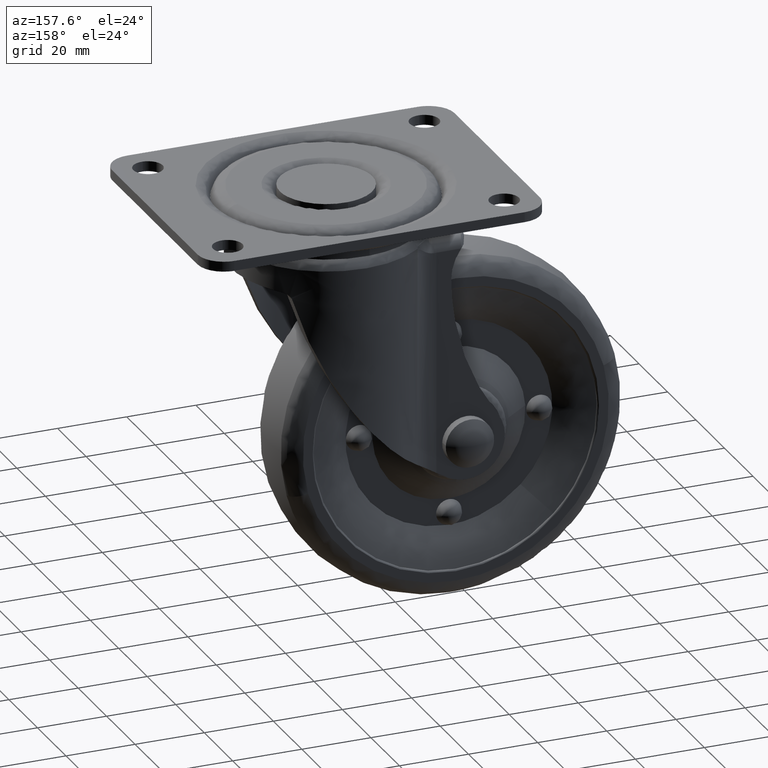
[diagram: clean part render]
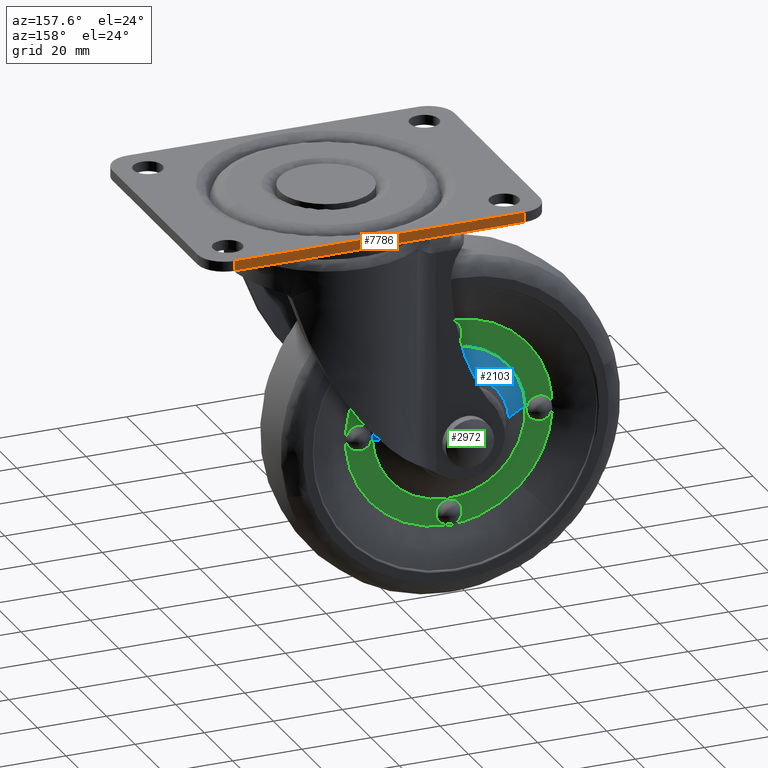
[diagram: same view with three faces highlighted in distinct colors, each labeled with its STEP entity id]
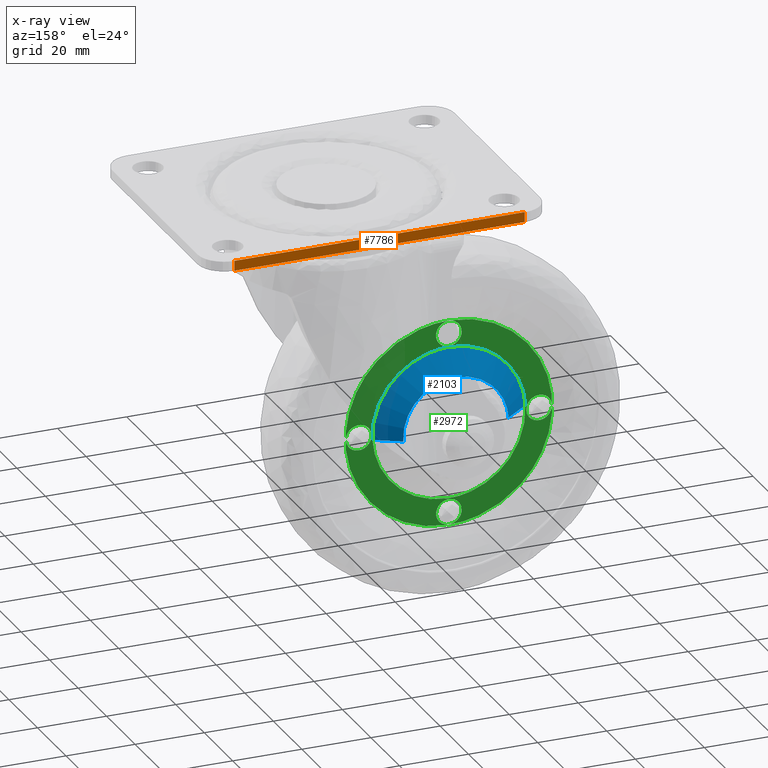
[diagram: x-ray of the same camera — body ghosted, the three highlighted faces saturated]
A machine part, auxiliary view with three faces highlighted in distinct colors.
The next image is the same camera in x-ray (body ghosted, the three faces saturated) — at least one of them is partly hidden behind the body in this view.
Their STEP definitions:

[orange] entity #7786 — the highlighted face is a freeform B-spline surface patch.
#7376=CARTESIAN_POINT('',(42.0,37.500000000000000,0.0));
#7377=VERTEX_POINT('',#7376);
#7378=CARTESIAN_POINT('',(-42.0,37.500000000000000,0.0));
#7379=VERTEX_POINT('',#7378);
#7380=CARTESIAN_POINT('',(42.0,37.500000000000000,0.0));
#7381=CARTESIAN_POINT('',(-42.0,37.500000000000000,0.0));
#7382=QUASI_UNIFORM_CURVE('',1,(#7380,#7381),.UNSPECIFIED.,.F.,.U.);
#7383=EDGE_CURVE('',#7377,#7379,#7382,.T.);
#7502=CARTESIAN_POINT('',(42.0,37.500000000000000,-2.899615000000000));
#7503=VERTEX_POINT('',#7502);
#7504=CARTESIAN_POINT('',(-42.0,37.500000000000000,-2.899615000000000));
#7505=VERTEX_POINT('',#7504);
#7506=CARTESIAN_POINT('',(42.0,37.500000000000000,-2.899615000000000));
#7507=CARTESIAN_POINT('',(-42.0,37.500000000000000,-2.899615000000000));
#7508=QUASI_UNIFORM_CURVE('',1,(#7506,#7507),.UNSPECIFIED.,.F.,.U.);
#7509=EDGE_CURVE('',#7503,#7505,#7508,.T.);
#7644=CARTESIAN_POINT('',(42.0,37.500000000000000,-2.899615000000000));
#7645=CARTESIAN_POINT('',(42.0,37.500000000000000,0.0));
#7646=QUASI_UNIFORM_CURVE('',1,(#7644,#7645),.UNSPECIFIED.,.F.,.U.);
#7647=EDGE_CURVE('',#7503,#7377,#7646,.T.);
#7765=CARTESIAN_POINT('',(-42.0,37.500000000000000,-2.899615000000000));
#7766=CARTESIAN_POINT('',(-42.0,37.500000000000000,0.0));
#7767=QUASI_UNIFORM_CURVE('',1,(#7765,#7766),.UNSPECIFIED.,.F.,.U.);
#7768=EDGE_CURVE('',#7505,#7379,#7767,.T.);
#7775=CARTESIAN_POINT('',(-46.195799837191707,37.500000000000000,-3.044450763629983));
#7776=CARTESIAN_POINT('',(-46.195799837191707,37.500000000000000,0.144835841403718));
#7777=CARTESIAN_POINT('',(46.195802090247270,37.500000000000000,-3.044450763629983));
#7778=CARTESIAN_POINT('',(46.195802090247270,37.500000000000000,0.144835841403718));
#7779=B_SPLINE_SURFACE_WITH_KNOTS('',1,1,((#7775,#7777),(#7776,#7778)),.UNSPECIFIED.,.F.,.F.,.U.,(2,2),(2,2),(0.0,3.189286605033701),(0.0,92.391601927438984),.UNSPECIFIED.);
#7780=ORIENTED_EDGE('',*,*,#7383,.F.);
#7781=ORIENTED_EDGE('',*,*,#7647,.F.);
#7782=ORIENTED_EDGE('',*,*,#7509,.T.);
#7783=ORIENTED_EDGE('',*,*,#7768,.T.);
#7784=EDGE_LOOP('',(#7780,#7781,#7782,#7783));
#7785=FACE_OUTER_BOUND('',#7784,.T.);
#7786=ADVANCED_FACE('',(#7785),#7779,.T.);

[blue] entity #2103 — the highlighted face is a freeform B-spline surface patch.
#1400=CARTESIAN_POINT('',(-32.999588012695313,11.073903562880410,-57.722896200178887));
#1401=VERTEX_POINT('',#1400);
#1432=CARTESIAN_POINT('',(-48.247796938047763,11.073898329930120,-72.066960589360576));
#1433=VERTEX_POINT('',#1432);
#1449=CARTESIAN_POINT('',(-32.999588012695313,11.073903562880410,-57.722896200178887));
#1450=CARTESIAN_POINT('',(-47.370475738826563,11.073900946185578,-57.722896315715992));
#1451=CARTESIAN_POINT('',(-48.247796938047763,11.073898329930126,-72.066960589360576));
#1459=(BOUNDED_CURVE()B_SPLINE_CURVE(2,(#1449,#1450,#1451),.UNSPECIFIED.,.F.,.U.)B_SPLINE_CURVE_WITH_KNOTS((3,3),(0.500000000000000,0.739332947020263),.UNSPECIFIED.)CURVE()GEOMETRIC_REPRESENTATION_ITEM()RATIONAL_B_SPLINE_CURVE((1.0,0.719604011116502,0.976072009050193))REPRESENTATION_ITEM(''));
#1460=EDGE_CURVE('',#1401,#1433,#1459,.T.);
#1495=CARTESIAN_POINT('',(-17.751379087420428,11.073898329986330,-73.932201410656575));
#1496=VERTEX_POINT('',#1495);
#1497=CARTESIAN_POINT('',(-17.751379087420432,11.073898329986328,-73.932201410656575));
#1498=CARTESIAN_POINT('',(-17.722884812914380,11.073898405179047,-73.466326381381222));
#1499=CARTESIAN_POINT('',(-17.722884755200010,11.073898485112130,-72.999580775151202));
#1500=CARTESIAN_POINT('',(-17.722882866196048,11.073901101339489,-57.722896091492466));
#1501=CARTESIAN_POINT('',(-32.999588012695313,11.073903562880410,-57.722896200178887));
#1509=(BOUNDED_CURVE()B_SPLINE_CURVE(2,(#1497,#1498,#1499,#1500,#1501),.UNSPECIFIED.,.F.,.U.)B_SPLINE_CURVE_WITH_KNOTS((3,2,3),(0.239332947005911,0.250000000000000,0.500000000000000),.UNSPECIFIED.)CURVE()GEOMETRIC_REPRESENTATION_ITEM()RATIONAL_B_SPLINE_CURVE((0.976072009019433,0.987502770053231,1.0,0.707106781186547,1.0))REPRESENTATION_ITEM(''));
#1510=EDGE_CURVE('',#1496,#1401,#1509,.T.);
#2037=CARTESIAN_POINT('',(-17.923002496432769,11.198251140333801,-73.921704473108406));
#2038=CARTESIAN_POINT('',(-17.000879023335315,11.198251140333804,-58.845118956845859));
#2039=CARTESIAN_POINT('',(-32.077464539597848,11.198251140333801,-57.922995483748409));
#2040=CARTESIAN_POINT('',(-47.154050055860381,11.198251140333804,-57.000872010650944));
#2041=CARTESIAN_POINT('',(-48.076173528957852,11.198251140333801,-72.077457526913491));
#2042=CARTESIAN_POINT('',(-10.711294562687151,5.972544236549284,-74.362791426096322));
#2043=CARTESIAN_POINT('',(-9.348084136601766,5.972544236549285,-52.074497976088153));
#2044=CARTESIAN_POINT('',(-31.636377586609932,5.972544236549284,-50.711287550002787));
#2045=CARTESIAN_POINT('',(-53.924671036618093,5.972544236549285,-49.348077123917413));
#2046=CARTESIAN_POINT('',(-55.287881462703467,5.972544236549284,-71.636370573925575));
#2054=(BOUNDED_SURFACE()B_SPLINE_SURFACE(2,1,((#2037,#2042),(#2038,#2043),(#2039,#2044),(#2040,#2045),(#2041,#2046)),.UNSPECIFIED.,.F.,.F.,.U.)B_SPLINE_SURFACE_WITH_KNOTS((3,2,3),(2,2),(0.0,36.997461440044113,73.994922880088211),(0.0,8.916910993500329),.UNSPECIFIED.)GEOMETRIC_REPRESENTATION_ITEM()RATIONAL_B_SPLINE_SURFACE(((1.0,1.0),(0.707106781186548,0.707106781186548),(1.0,1.0),(0.707106781186548,0.707106781186548),(1.0,1.0)))REPRESENTATION_ITEM('')SURFACE());
#2055=ORIENTED_EDGE('',*,*,#1510,.T.);
#2056=ORIENTED_EDGE('',*,*,#1460,.T.);
#2057=CARTESIAN_POINT('',(-55.111986147247762,6.100000502493363,-71.647128792272682));
#2058=VERTEX_POINT('',#2057);
#2059=CARTESIAN_POINT('',(-48.247796938047763,11.073898329930120,-72.066960589360576));
#2060=CARTESIAN_POINT('',(-55.111986147247762,6.100000502493363,-71.647128792272682));
#2061=QUASI_UNIFORM_CURVE('',1,(#2059,#2060),.UNSPECIFIED.,.F.,.U.);
#2062=EDGE_CURVE('',#1433,#2058,#2061,.T.);
#2063=ORIENTED_EDGE('',*,*,#2062,.T.);
#2064=CARTESIAN_POINT('',(-32.999588012695313,6.100000502495250,-50.845861713284840));
#2065=VERTEX_POINT('',#2064);
#2066=CARTESIAN_POINT('',(-32.999588012695313,6.100000502495250,-50.845861713284840));
#2067=CARTESIAN_POINT('',(-53.839726150228287,6.100000502494305,-50.845861713284776));
#2068=CARTESIAN_POINT('',(-55.111986147247762,6.100000502493363,-71.647128792272682));
#2076=(BOUNDED_CURVE()B_SPLINE_CURVE(2,(#2066,#2067,#2068),.UNSPECIFIED.,.F.,.U.)B_SPLINE_CURVE_WITH_KNOTS((3,3),(0.500000000000000,0.739332962241826),.UNSPECIFIED.)CURVE()GEOMETRIC_REPRESENTATION_ITEM()RATIONAL_B_SPLINE_CURVE((1.0,0.719603993283333,0.976072041672896))REPRESENTATION_ITEM(''));
#2077=EDGE_CURVE('',#2065,#2058,#2076,.T.);
#2078=ORIENTED_EDGE('',*,*,#2077,.F.);
#2079=CARTESIAN_POINT('',(-10.887189878142861,6.100000502493364,-74.352033207749201));
#2080=VERTEX_POINT('',#2079);
#2081=CARTESIAN_POINT('',(-10.887189878142870,6.100000502493364,-74.352033207749201));
#2082=CARTESIAN_POINT('',(-10.845868725966664,6.100000502493391,-73.676438341571000));
#2083=CARTESIAN_POINT('',(-10.845868725966710,6.100000502493419,-72.999581000011105));
#2084=CARTESIAN_POINT('',(-10.845868725967996,6.100000502494362,-50.845861713284926));
#2085=CARTESIAN_POINT('',(-32.999588012695313,6.100000502495250,-50.845861713284840));
#2093=(BOUNDED_CURVE()B_SPLINE_CURVE(2,(#2081,#2082,#2083,#2084,#2085),.UNSPECIFIED.,.F.,.U.)B_SPLINE_CURVE_WITH_KNOTS((3,2,3),(0.239332962241826,0.250000000000000,0.500000000000000),.UNSPECIFIED.)CURVE()GEOMETRIC_REPRESENTATION_ITEM()RATIONAL_B_SPLINE_CURVE((0.976072041672896,0.987502787903215,1.0,0.707106781186547,1.0))REPRESENTATION_ITEM(''));
#2094=EDGE_CURVE('',#2080,#2065,#2093,.T.);
#2095=ORIENTED_EDGE('',*,*,#2094,.F.);
#2096=CARTESIAN_POINT('',(-17.751379087420428,11.073898329986330,-73.932201410656575));
#2097=CARTESIAN_POINT('',(-10.887189878142861,6.100000502493364,-74.352033207749201));
#2098=QUASI_UNIFORM_CURVE('',1,(#2096,#2097),.UNSPECIFIED.,.F.,.U.);
#2099=EDGE_CURVE('',#1496,#2080,#2098,.T.);
#2100=ORIENTED_EDGE('',*,*,#2099,.F.);
#2101=EDGE_LOOP('',(#2055,#2056,#2063,#2078,#2095,#2100));
#2102=FACE_OUTER_BOUND('',#2101,.T.);
#2103=ADVANCED_FACE('',(#2102),#2054,.T.);

[green] entity #2972 — the highlighted face is a freeform B-spline surface patch.
#2057=CARTESIAN_POINT('',(-55.111986147247762,6.100000502493363,-71.647128792272682));
#2058=VERTEX_POINT('',#2057);
#2064=CARTESIAN_POINT('',(-32.999588012695313,6.100000502495250,-50.845861713284840));
#2065=VERTEX_POINT('',#2064);
#2066=CARTESIAN_POINT('',(-32.999588012695313,6.100000502495250,-50.845861713284840));
#2067=CARTESIAN_POINT('',(-53.839726150228287,6.100000502494305,-50.845861713284776));
#2068=CARTESIAN_POINT('',(-55.111986147247762,6.100000502493363,-71.647128792272682));
#2076=(BOUNDED_CURVE()B_SPLINE_CURVE(2,(#2066,#2067,#2068),.UNSPECIFIED.,.F.,.U.)B_SPLINE_CURVE_WITH_KNOTS((3,3),(0.500000000000000,0.739332962241826),.UNSPECIFIED.)CURVE()GEOMETRIC_REPRESENTATION_ITEM()RATIONAL_B_SPLINE_CURVE((1.0,0.719603993283333,0.976072041672896))REPRESENTATION_ITEM(''));
#2077=EDGE_CURVE('',#2065,#2058,#2076,.T.);
#2079=CARTESIAN_POINT('',(-10.887189878142861,6.100000502493364,-74.352033207749201));
#2080=VERTEX_POINT('',#2079);
#2081=CARTESIAN_POINT('',(-10.887189878142870,6.100000502493364,-74.352033207749201));
#2082=CARTESIAN_POINT('',(-10.845868725966664,6.100000502493391,-73.676438341571000));
#2083=CARTESIAN_POINT('',(-10.845868725966710,6.100000502493419,-72.999581000011105));
#2084=CARTESIAN_POINT('',(-10.845868725967996,6.100000502494362,-50.845861713284926));
#2085=CARTESIAN_POINT('',(-32.999588012695313,6.100000502495250,-50.845861713284840));
#2093=(BOUNDED_CURVE()B_SPLINE_CURVE(2,(#2081,#2082,#2083,#2084,#2085),.UNSPECIFIED.,.F.,.U.)B_SPLINE_CURVE_WITH_KNOTS((3,2,3),(0.239332962241826,0.250000000000000,0.500000000000000),.UNSPECIFIED.)CURVE()GEOMETRIC_REPRESENTATION_ITEM()RATIONAL_B_SPLINE_CURVE((0.976072041672896,0.987502787903215,1.0,0.707106781186547,1.0))REPRESENTATION_ITEM(''));
#2094=EDGE_CURVE('',#2080,#2065,#2093,.T.);
#2124=CARTESIAN_POINT('',(-32.999588012695313,6.100000502495250,-95.153300286737050));
#2125=VERTEX_POINT('',#2124);
#2126=CARTESIAN_POINT('',(-32.999588012695313,6.100000502495250,-95.153300286737050));
#2127=CARTESIAN_POINT('',(-12.159449875162327,6.100000502494310,-95.153300286737121));
#2128=CARTESIAN_POINT('',(-10.887189878142859,6.100000502493363,-74.352033207749201));
#2136=(BOUNDED_CURVE()B_SPLINE_CURVE(2,(#2126,#2127,#2128),.UNSPECIFIED.,.F.,.U.)B_SPLINE_CURVE_WITH_KNOTS((3,3),(0.0,0.239332962241826),.UNSPECIFIED.)CURVE()GEOMETRIC_REPRESENTATION_ITEM()RATIONAL_B_SPLINE_CURVE((1.0,0.719603993283333,0.976072041672896))REPRESENTATION_ITEM(''));
#2137=EDGE_CURVE('',#2125,#2080,#2136,.T.);
#2139=CARTESIAN_POINT('',(-55.111986147247762,6.100000502493363,-71.647128792272682));
#2140=CARTESIAN_POINT('',(-55.153307299423965,6.100000502493390,-72.322723658450911));
#2141=CARTESIAN_POINT('',(-55.153307299423922,6.100000502493418,-72.999581000010807));
#2142=CARTESIAN_POINT('',(-55.153307299422629,6.100000502494361,-95.153300286736965));
#2143=CARTESIAN_POINT('',(-32.999588012695313,6.100000502495250,-95.153300286737050));
#2151=(BOUNDED_CURVE()B_SPLINE_CURVE(2,(#2139,#2140,#2141,#2142,#2143),.UNSPECIFIED.,.F.,.U.)B_SPLINE_CURVE_WITH_KNOTS((3,2,3),(0.739332962241826,0.750000000000000,1.0),.UNSPECIFIED.)CURVE()GEOMETRIC_REPRESENTATION_ITEM()RATIONAL_B_SPLINE_CURVE((0.976072041672896,0.987502787903215,1.0,0.707106781186547,1.0))REPRESENTATION_ITEM(''));
#2152=EDGE_CURVE('',#2058,#2125,#2151,.T.);
#2357=CARTESIAN_POINT('',(-59.099588012695307,6.100000502495250,-76.698229388206386));
#2358=VERTEX_POINT('',#2357);
#2359=CARTESIAN_POINT('',(-59.099588012695307,6.100000502495250,-69.300932611815497));
#2360=VERTEX_POINT('',#2359);
#2361=CARTESIAN_POINT('',(-59.099588012695307,6.100000502495250,-76.698229388206386));
#2362=CARTESIAN_POINT('',(-59.265989363709487,6.100000502495254,-76.698233227369727));
#2363=CARTESIAN_POINT('',(-59.432393955151362,6.100000502495242,-76.686991320960516));
#2364=CARTESIAN_POINT('',(-59.612272253188749,6.100000502495254,-76.662543509191352));
#2365=CARTESIAN_POINT('',(-59.642155957434113,6.100000502495242,-76.657763668037234));
#2366=CARTESIAN_POINT('',(-59.687142039939822,6.100000502495250,-76.651635848123448));
#2367=CARTESIAN_POINT('',(-59.731775311293397,6.100000502495242,-76.643329809286328));
#2368=CARTESIAN_POINT('',(-59.776597374136728,6.100000502495259,-76.636115416656665));
#2369=CARTESIAN_POINT('',(-59.821017305598062,6.100000502495237,-76.626731459983759));
#2370=CARTESIAN_POINT('',(-59.850730003381329,6.100000502495258,-76.621090206052429));
#2371=CARTESIAN_POINT('',(-60.369051880823200,6.100000502495228,-76.512006285220991));
#2372=CARTESIAN_POINT('',(-60.863540126635087,6.100000502495261,-76.292451328933694));
#2373=CARTESIAN_POINT('',(-61.302950566637492,6.100000502495249,-75.970480022540997));
#2374=CARTESIAN_POINT('',(-61.338918782961947,6.100000502495249,-75.942809165260257));
#2375=CARTESIAN_POINT('',(-61.387189099416631,6.100000502495299,-75.906317619849176));
#2376=CARTESIAN_POINT('',(-61.753643371626637,6.100000502495015,-75.613389374729195));
#2377=CARTESIAN_POINT('',(-62.204529835806383,6.100000502495489,-75.089904747948836));
#2378=CARTESIAN_POINT('',(-62.605859592679010,6.100000502495234,-74.254416797589613));
#2379=CARTESIAN_POINT('',(-62.731691539359673,6.100000502495234,-73.752394292829337));
#2380=CARTESIAN_POINT('',(-62.770591666470906,6.100000502495261,-73.452295431330938));
#2381=CARTESIAN_POINT('',(-62.775303035453803,6.100000502495232,-73.407152671385177));
#2382=CARTESIAN_POINT('',(-62.780601603989041,6.100000502495093,-73.362077239505439));
#2383=CARTESIAN_POINT('',(-62.805568141172500,6.100000502496767,-73.090907753568729));
#2384=CARTESIAN_POINT('',(-62.802198055867933,6.100000502494755,-72.817331124671369));
#2385=CARTESIAN_POINT('',(-62.770598162921800,6.100000502495261,-72.546858010693498));
#2386=CARTESIAN_POINT('',(-62.764188398503052,6.100000502495245,-72.501929060168166));
#2387=CARTESIAN_POINT('',(-62.760384829828737,6.100000502495243,-72.471908975219677));
#2388=CARTESIAN_POINT('',(-62.705127294559048,6.100000502495266,-72.097688685223332));
#2389=CARTESIAN_POINT('',(-62.531665599922647,6.100000502495243,-71.526993920373783));
#2390=CARTESIAN_POINT('',(-62.222415262419517,6.100000502495254,-71.003786248436882));
#2391=CARTESIAN_POINT('',(-62.070513690510339,6.100000502495250,-70.796206982181587));
#2392=CARTESIAN_POINT('',(-62.042817270198782,6.100000502495248,-70.760251756250128));
#2393=CARTESIAN_POINT('',(-62.006452214158969,6.100000502495250,-70.711875230835659));
#2394=CARTESIAN_POINT('',(-61.977837451965932,6.100000502495250,-70.676634007782454));
#2395=CARTESIAN_POINT('',(-61.690146443849123,6.100000502495250,-70.325481307976148));
#2396=CARTESIAN_POINT('',(-61.166650254084161,6.100000502495254,-69.874585108901769));
#2397=CARTESIAN_POINT('',(-60.325295720749139,6.100000502495244,-69.483072376486874));
#2398=CARTESIAN_POINT('',(-59.822388627423969,6.100000502495257,-69.363622375540956));
#2399=CARTESIAN_POINT('',(-59.552305463323243,6.100000502495250,-69.328571615343080));
#2400=CARTESIAN_POINT('',(-59.507179999560563,6.100000502495247,-69.323691196438190));
#2401=CARTESIAN_POINT('',(-59.356763846523307,6.100000502495078,-69.307552192876798));
#2402=CARTESIAN_POINT('',(-59.220601496103100,6.100000502496289,-69.300938691965939));
#2403=CARTESIAN_POINT('',(-59.099588012695307,6.100000502495250,-69.300932611815497));
#2404=B_SPLINE_CURVE_WITH_KNOTS('',3,(#2361,#2362,#2363,#2364,#2365,#2366,#2367,#2368,#2369,#2370,#2371,#2372,#2373,#2374,#2375,#2376,#2377,#2378,#2379,#2380,#2381,#2382,#2383,#2384,#2385,#2386,#2387,#2388,#2389,#2390,#2391,#2392,#2393,#2394,#2395,#2396,#2397,#2398,#2399,#2400,#2401,#2402,#2403),.UNSPECIFIED.,.F.,.U.,(4,2,1,1,1,1,1,2,1,1,1,1,1,1,1,1,1,1,1,1,1,1,1,2,1,1,1,1,1,2,1,1,1,1,1,1,4),(0.000174023506132,0.499384006782433,0.544777320639190,0.590170634495939,0.635562667790509,0.680954701085090,0.726346218089747,0.771737735094403,2.315035365043729,2.360407030157836,2.405797503750703,2.451187977343578,2.541968962309085,3.812884382061155,4.493750306813258,5.310783132231852,5.356144531612651,5.401544758417764,5.446944985222882,5.492298586068270,6.218462271583142,6.263816491333564,6.309213177591999,6.354609863850441,7.443959287843863,8.124846601056547,8.170218505441365,8.215608977495926,8.260999449550477,8.351780431600663,9.622695707240363,10.394333182290611,11.120594594494181,11.165956096186649,11.211356303019789,11.256756509852940,11.619804168216870),.UNSPECIFIED.);
#2405=EDGE_CURVE('',#2358,#2360,#2404,.T.);
#2407=CARTESIAN_POINT('',(-59.099588012695307,6.100000502495250,-69.300932611815497));
#2408=CARTESIAN_POINT('',(-58.933186661681191,6.100000502495256,-69.300928772652313));
#2409=CARTESIAN_POINT('',(-58.766782070239167,6.100000502495248,-69.312170679061239));
#2410=CARTESIAN_POINT('',(-58.586903772201907,6.100000502495251,-69.336618490830617));
#2411=CARTESIAN_POINT('',(-58.557020067956500,6.100000502495252,-69.341398331984593));
#2412=CARTESIAN_POINT('',(-58.512033985450827,6.100000502495250,-69.347526151898450));
#2413=CARTESIAN_POINT('',(-58.467400714097202,6.100000502495243,-69.355832190735455));
#2414=CARTESIAN_POINT('',(-58.422578651253943,6.100000502495255,-69.363046583365389));
#2415=CARTESIAN_POINT('',(-58.378158719792502,6.100000502495242,-69.372430540037911));
#2416=CARTESIAN_POINT('',(-58.348445779658242,6.100000502495257,-69.378070946682200));
#2417=CARTESIAN_POINT('',(-57.830124838229672,6.100000502495247,-69.487158490011169));
#2418=CARTESIAN_POINT('',(-57.335635479524271,6.100000502495248,-69.706709056639568));
#2419=CARTESIAN_POINT('',(-56.896225495168423,6.100000502495251,-70.028682104152026));
#2420=CARTESIAN_POINT('',(-56.860257127907019,6.100000502495246,-70.056352690507410));
#2421=CARTESIAN_POINT('',(-56.811881322496802,6.100000502495267,-70.092718685079618));
#2422=CARTESIAN_POINT('',(-56.776645874296669,6.100000502495161,-70.121337887729780));
#2423=CARTESIAN_POINT('',(-56.425455126559513,6.100000502495578,-70.408999459097956));
#2424=CARTESIAN_POINT('',(-55.994671701576181,6.100000502494326,-70.909284088181593));
#2425=CARTESIAN_POINT('',(-55.593308580463223,6.100000502496047,-71.744733528119255));
#2426=CARTESIAN_POINT('',(-55.467486098176352,6.100000502494913,-72.246771047989910));
#2427=CARTESIAN_POINT('',(-55.428583875958481,6.100000502495280,-72.546865919667709));
#2428=CARTESIAN_POINT('',(-55.423872844781357,6.100000502495353,-72.592009360183638));
#2429=CARTESIAN_POINT('',(-55.418573192513520,6.100000502496212,-72.637085031180376));
#2430=CARTESIAN_POINT('',(-55.393620176306293,6.100000502484935,-72.908251587172742));
#2431=CARTESIAN_POINT('',(-55.396965685939222,6.100000502507266,-73.181832946497764));
#2432=CARTESIAN_POINT('',(-55.428579092332512,6.100000502494030,-73.452303797427348));
#2433=CARTESIAN_POINT('',(-55.434781737232839,6.100000502495165,-73.497259949143867));
#2434=CARTESIAN_POINT('',(-55.481172901633592,6.100000502495259,-73.826884317377065));
#2435=CARTESIAN_POINT('',(-55.644009857419277,6.100000502495245,-74.414521660089889));
#2436=CARTESIAN_POINT('',(-55.940949784232913,6.100000502495256,-74.946574967049330));
#2437=CARTESIAN_POINT('',(-56.128670596898601,6.100000502495251,-75.202950324212594));
#2438=CARTESIAN_POINT('',(-56.156358455400849,6.100000502495250,-75.238910424303143));
#2439=CARTESIAN_POINT('',(-56.192853396971429,6.100000502495250,-75.287178078380734));
#2440=CARTESIAN_POINT('',(-56.485759832406131,6.100000502495252,-75.653650218260708));
#2441=CARTESIAN_POINT('',(-57.032537494764910,6.100000502495250,-76.124561405587670));
#2442=CARTESIAN_POINT('',(-57.873880176241329,6.100000502495247,-76.516088928645232));
#2443=CARTESIAN_POINT('',(-58.376785845491128,6.100000502495250,-76.635542330178524));
#2444=CARTESIAN_POINT('',(-58.646870635443861,6.100000502495250,-76.670590197772384));
#2445=CARTESIAN_POINT('',(-58.691996023749702,6.100000502495247,-76.675470797193825));
#2446=CARTESIAN_POINT('',(-58.842412179271562,6.100000502495075,-76.691609808387099));
#2447=CARTESIAN_POINT('',(-58.978574529256839,6.100000502496289,-76.698223307959253));
#2448=CARTESIAN_POINT('',(-59.099588012695307,6.100000502495250,-76.698229388206386));
#2449=B_SPLINE_CURVE_WITH_KNOTS('',3,(#2407,#2408,#2409,#2410,#2411,#2412,#2413,#2414,#2415,#2416,#2417,#2418,#2419,#2420,#2421,#2422,#2423,#2424,#2425,#2426,#2427,#2428,#2429,#2430,#2431,#2432,#2433,#2434,#2435,#2436,#2437,#2438,#2439,#2440,#2441,#2442,#2443,#2444,#2445,#2446,#2447,#2448),.UNSPECIFIED.,.F.,.U.,(4,2,1,1,1,1,1,2,1,1,1,1,2,1,1,1,1,1,1,1,1,1,1,1,1,1,1,1,1,1,1,1,1,1,1,1,4),(0.000174023757431,0.499384007024002,0.544777320879881,0.590170634735756,0.635562668029451,0.680954701323145,0.726346218326917,0.771737735330696,2.315035365251122,2.360407030364366,2.405797503956380,2.451187977548386,2.541968962512129,3.812884382238801,4.493750306976094,5.310783132376227,5.356144531755924,5.401544758559989,5.446944985364054,5.492298586208351,6.218462271705851,6.263816491455254,6.309213177712669,6.354609863970073,7.262396658054958,8.124846601136923,8.170218505520701,8.215608977574231,8.260999449627761,8.351780431675865,9.622695707286262,10.394333182318601,11.120594594505031,11.165956096196400,11.211356303028470,11.256756509860530,11.619804168215779),.UNSPECIFIED.);
#2450=EDGE_CURVE('',#2360,#2358,#2449,.T.);
#2499=CARTESIAN_POINT('',(-32.999588012695313,6.100000502495250,-50.598229388206391));
#2500=VERTEX_POINT('',#2499);
#2501=CARTESIAN_POINT('',(-32.999588012695313,6.100000502495250,-43.200932611815503));
#2502=VERTEX_POINT('',#2501);
#2503=CARTESIAN_POINT('',(-32.999588012695313,6.100000502495250,-50.598229388206391));
#2504=CARTESIAN_POINT('',(-33.165989363709471,6.100000502495251,-50.598233227369747));
#2505=CARTESIAN_POINT('',(-33.332393955151403,6.100000502495253,-50.586991320960529));
#2506=CARTESIAN_POINT('',(-33.512272253188733,6.100000502495249,-50.562543509191322));
#2507=CARTESIAN_POINT('',(-33.542155957434119,6.100000502495247,-50.557763668037303));
#2508=CARTESIAN_POINT('',(-33.587142039939799,6.100000502495250,-50.551635848123439));
#2509=CARTESIAN_POINT('',(-33.631775311293417,6.100000502495249,-50.543329809286377));
#2510=CARTESIAN_POINT('',(-33.676597374136712,6.100000502495251,-50.536115416656571));
#2511=CARTESIAN_POINT('',(-33.721017305598117,6.100000502495250,-50.526731459983900));
#2512=CARTESIAN_POINT('',(-33.750728116124812,6.100000502495250,-50.521085497375680));
#2513=CARTESIAN_POINT('',(-34.269053290559327,6.100000502495233,-50.412009895472451));
#2514=CARTESIAN_POINT('',(-34.763539892288591,6.100000502495305,-50.192454700790798));
#2515=CARTESIAN_POINT('',(-35.202948045264051,6.100000502495230,-49.870474047845093));
#2516=CARTESIAN_POINT('',(-35.238918897043327,6.100000502495251,-49.842809336821702));
#2517=CARTESIAN_POINT('',(-35.287219741570730,6.100000502495250,-49.806344135751807));
#2518=CARTESIAN_POINT('',(-35.558911805484513,6.100000502495251,-49.588835187138969));
#2519=CARTESIAN_POINT('',(-35.958272257867549,6.100000502495246,-49.169224544916133));
#2520=CARTESIAN_POINT('',(-36.442874865999443,6.100000502495255,-48.360732561089328));
#2521=CARTESIAN_POINT('',(-36.622528465806269,6.100000502495248,-47.742785299390761));
#2522=CARTESIAN_POINT('',(-36.672221119804611,6.100000502495250,-47.337256086304343));
#2523=CARTESIAN_POINT('',(-36.675297258682413,6.100000502495250,-47.307151943576017));
#2524=CARTESIAN_POINT('',(-36.680602585219617,6.100000502495259,-47.262076947111453));
#2525=CARTESIAN_POINT('',(-36.705557205615577,6.100000502495119,-46.990910677872513));
#2526=CARTESIAN_POINT('',(-36.702211231600977,6.100000502495460,-46.717328496368893));
#2527=CARTESIAN_POINT('',(-36.670595827596301,6.100000502495228,-46.446858392783660));
#2528=CARTESIAN_POINT('',(-36.664193810605717,6.100000502495246,-46.401928307874293));
#2529=CARTESIAN_POINT('',(-36.658366580053112,6.100000502495251,-46.356915422236227));
#2530=CARTESIAN_POINT('',(-36.600654305359569,6.100000502495250,-45.983067532573820));
#2531=CARTESIAN_POINT('',(-36.423960917286593,6.100000502495250,-45.413911727908662));
#2532=CARTESIAN_POINT('',(-36.122406716403027,6.100000502495248,-44.903788826888459));
#2533=CARTESIAN_POINT('',(-35.970514560496397,6.100000502495251,-44.696206711056028));
#2534=CARTESIAN_POINT('',(-35.942817266792638,6.100000502495252,-44.660251758381392));
#2535=CARTESIAN_POINT('',(-35.906362056175738,6.100000502495251,-44.611941534287133));
#2536=CARTESIAN_POINT('',(-35.726605824909562,6.100000502495243,-44.387572619776734));
#2537=CARTESIAN_POINT('',(-35.307381805748911,6.100000502495251,-43.968236813688200));
#2538=CARTESIAN_POINT('',(-34.518089523825012,6.100000502495253,-43.475208463164378));
#2539=CARTESIAN_POINT('',(-33.842465039662343,6.100000502495250,-43.279011498591480));
#2540=CARTESIAN_POINT('',(-33.452299075967296,6.100000502495249,-43.228594933241467));
#2541=CARTESIAN_POINT('',(-33.407180032480781,6.100000502495251,-43.223691062207408));
#2542=CARTESIAN_POINT('',(-33.256763840102323,6.100000502495442,-43.207552219064397));
#2543=CARTESIAN_POINT('',(-33.120601496725349,6.100000502494203,-43.200938689391293));
#2544=CARTESIAN_POINT('',(-32.999588012695313,6.100000502495250,-43.200932611815503));
#2545=B_SPLINE_CURVE_WITH_KNOTS('',3,(#2503,#2504,#2505,#2506,#2507,#2508,#2509,#2510,#2511,#2512,#2513,#2514,#2515,#2516,#2517,#2518,#2519,#2520,#2521,#2522,#2523,#2524,#2525,#2526,#2527,#2528,#2529,#2530,#2531,#2532,#2533,#2534,#2535,#2536,#2537,#2538,#2539,#2540,#2541,#2542,#2543,#2544),.UNSPECIFIED.,.F.,.U.,(4,2,1,1,1,1,1,2,1,1,1,1,1,1,1,2,1,1,1,1,1,1,1,1,1,1,1,1,1,1,1,1,1,1,1,1,4),(0.000174023734798,0.499384007001517,0.544777320857403,0.590170634713280,0.635562668006980,0.680954701300680,0.726346218304460,0.771737735308250,2.315035365228138,2.360407030341332,2.405797503933304,2.451187977525274,2.541968962488971,3.449772980163347,4.175983004225238,5.356144531733198,5.401544758537312,5.446944985341420,5.492298586185781,6.218462271684798,6.263816491434247,6.309213177691740,6.354609863949229,6.399985200874689,7.443959287921317,8.124846601121195,8.170218505505165,8.215608977558878,8.260999449612577,8.351780431661050,9.078025290252148,10.031227943260079,11.120594594502560,11.165956096194179,11.211356303026490,11.256756509858789,11.619804168216040),.UNSPECIFIED.);
#2546=EDGE_CURVE('',#2500,#2502,#2545,.T.);
#2548=CARTESIAN_POINT('',(-32.999588012695313,6.100000502495250,-43.200932611815503));
#2549=CARTESIAN_POINT('',(-32.833186621580481,6.100000502495250,-43.200928751826211));
#2550=CARTESIAN_POINT('',(-32.666782392223531,6.100000502495246,-43.212170675016701));
#2551=CARTESIAN_POINT('',(-32.486903715591247,6.100000502495250,-43.236618492296849));
#2552=CARTESIAN_POINT('',(-32.457020067956492,6.100000502495249,-43.241398331984577));
#2553=CARTESIAN_POINT('',(-32.412033985450833,6.100000502495248,-43.247526151898462));
#2554=CARTESIAN_POINT('',(-32.367400714097208,6.100000502495252,-43.255832190735532));
#2555=CARTESIAN_POINT('',(-32.322578651253920,6.100000502495243,-43.263046583365288));
#2556=CARTESIAN_POINT('',(-32.278158719792508,6.100000502495260,-43.272430540038059));
#2557=CARTESIAN_POINT('',(-32.248447946533062,6.100000502495250,-43.278076492127553));
#2558=CARTESIAN_POINT('',(-31.730122619112990,6.100000502495245,-43.387152134245312));
#2559=CARTESIAN_POINT('',(-31.235636063461101,6.100000502495195,-43.606707327738967));
#2560=CARTESIAN_POINT('',(-30.796227993983589,6.100000502495274,-43.928687948468799));
#2561=CARTESIAN_POINT('',(-30.760257083568249,6.100000502495247,-43.956352592230893));
#2562=CARTESIAN_POINT('',(-30.711986029971129,6.100000502495267,-43.992846735086317));
#2563=CARTESIAN_POINT('',(-30.345543753284868,6.100000502495122,-44.285760849842632));
#2564=CARTESIAN_POINT('',(-29.834469033053640,6.100000502495489,-44.879042412173220));
#2565=CARTESIAN_POINT('',(-29.456541946518250,6.100000502495189,-45.746116102863020));
#2566=CARTESIAN_POINT('',(-29.349736862261661,6.100000502495267,-46.266526342745337));
#2567=CARTESIAN_POINT('',(-29.323674114071618,6.100000502495249,-46.491986931117950));
#2568=CARTESIAN_POINT('',(-29.318574311967811,6.100000502495260,-46.537084926499531));
#2569=CARTESIAN_POINT('',(-29.293609026104079,6.100000502495098,-46.808252444753457));
#2570=CARTESIAN_POINT('',(-29.296976735126801,6.100000502495548,-47.081833269525262));
#2571=CARTESIAN_POINT('',(-29.328578860433769,6.100000502495218,-47.352303619559102));
#2572=CARTESIAN_POINT('',(-29.334982021755870,6.100000502495245,-47.397233709427653));
#2573=CARTESIAN_POINT('',(-29.340809511421991,6.100000502495250,-47.442246545998273));
#2574=CARTESIAN_POINT('',(-29.398521685717260,6.100000502495249,-47.816094401903982));
#2575=CARTESIAN_POINT('',(-29.575215060412720,6.100000502495259,-48.385250230191602));
#2576=CARTESIAN_POINT('',(-29.876769323302661,6.100000502495028,-48.895373128685719));
#2577=CARTESIAN_POINT('',(-30.028661470403769,6.100000502496633,-49.102955287777462));
#2578=CARTESIAN_POINT('',(-30.056358611009760,6.100000502494716,-49.138910346062502));
#2579=CARTESIAN_POINT('',(-30.092854860535649,6.100000502494283,-49.187175402404399));
#2580=CARTESIAN_POINT('',(-30.385750057870879,6.100000502495251,-49.553669194269219));
#2581=CARTESIAN_POINT('',(-30.886022750206848,6.100000502495270,-49.984450508972628));
#2582=CARTESIAN_POINT('',(-31.715613875885470,6.100000502495257,-50.395605702379939));
#2583=CARTESIAN_POINT('',(-32.216756417135507,6.100000502495235,-50.527836912251750));
#2584=CARTESIAN_POINT('',(-32.546872583743081,6.100000502495254,-50.570579920399879));
#2585=CARTESIAN_POINT('',(-32.591995947411682,6.100000502494524,-50.575471101011907));
#2586=CARTESIAN_POINT('',(-32.742412362542282,6.100000502499971,-50.591609047104193));
#2587=CARTESIAN_POINT('',(-32.878574848480703,6.100000502489527,-50.598223767082722));
#2588=CARTESIAN_POINT('',(-32.999588012695313,6.100000502495250,-50.598229388206391));
#2589=B_SPLINE_CURVE_WITH_KNOTS('',3,(#2548,#2549,#2550,#2551,#2552,#2553,#2554,#2555,#2556,#2557,#2558,#2559,#2560,#2561,#2562,#2563,#2564,#2565,#2566,#2567,#2568,#2569,#2570,#2571,#2572,#2573,#2574,#2575,#2576,#2577,#2578,#2579,#2580,#2581,#2582,#2583,#2584,#2585,#2586,#2587,#2588),.UNSPECIFIED.,.F.,.U.,(4,2,1,1,1,1,1,2,1,1,1,1,1,1,1,1,1,1,1,1,1,1,1,1,1,1,1,1,1,1,1,1,1,1,1,1,4),(0.000174023555614,0.499384006829832,0.544777320686382,0.590170634542954,0.635562667837336,0.680954701131716,0.726346218136175,0.771737735140645,2.315035365084087,2.360407030197992,2.405797503790680,2.451187977383368,2.541968962348506,3.812884382094902,4.766055066985676,5.356144531637556,5.401544758442422,5.446944985247283,5.492298586092404,6.218462271603243,6.263816491353401,6.309213177611608,6.354609863869796,6.399985200795992,7.443959287858740,8.124846601068928,8.170218505453557,8.215608977507941,8.260999449562302,8.351780431612102,9.622695707246784,10.212787056406590,11.120594594495550,11.165956096187870,11.211356303020869,11.256756509853870,11.619804168216691),.UNSPECIFIED.);
#2590=EDGE_CURVE('',#2502,#2500,#2589,.T.);
#2639=CARTESIAN_POINT('',(-6.899588012695311,6.100000502495250,-76.698229388206386));
#2640=VERTEX_POINT('',#2639);
#2641=CARTESIAN_POINT('',(-6.899588012695311,6.100000502495250,-69.300932611815497));
#2642=VERTEX_POINT('',#2641);
#2643=CARTESIAN_POINT('',(-6.899588012695311,6.100000502495250,-76.698229388206386));
#2644=CARTESIAN_POINT('',(-7.065989363709473,6.100000502495240,-76.698233227369585));
#2645=CARTESIAN_POINT('',(-7.232393955151373,6.100000502495249,-76.686991320960558));
#2646=CARTESIAN_POINT('',(-7.412272253188704,6.100000502495253,-76.662543509191337));
#2647=CARTESIAN_POINT('',(-7.442155957434139,6.100000502495247,-76.657763668037276));
#2648=CARTESIAN_POINT('',(-7.487142039939791,6.100000502495250,-76.651635848123419));
#2649=CARTESIAN_POINT('',(-7.531775311293394,6.100000502495257,-76.643329809286470));
#2650=CARTESIAN_POINT('',(-7.576597374136725,6.100000502495241,-76.636115416656466));
#2651=CARTESIAN_POINT('',(-7.621017305598056,6.100000502495259,-76.626731459984015));
#2652=CARTESIAN_POINT('',(-7.650728060173211,6.100000502495253,-76.621085503842551));
#2653=CARTESIAN_POINT('',(-8.169053545094144,6.100000502495226,-76.512009845126258));
#2654=CARTESIAN_POINT('',(-8.663539703028661,6.100000502495252,-76.292454775147377));
#2655=CARTESIAN_POINT('',(-9.102948054437825,6.100000502495253,-75.970474027281938));
#2656=CARTESIAN_POINT('',(-9.138918714976402,6.100000502495245,-75.942809172045827));
#2657=CARTESIAN_POINT('',(-9.187189485354786,6.100000502495326,-75.906317668226052));
#2658=CARTESIAN_POINT('',(-9.553643860959792,6.100000502494848,-75.613390755160921));
#2659=CARTESIAN_POINT('',(-10.004524334788471,6.100000502495711,-75.089899251058952));
#2660=CARTESIAN_POINT('',(-10.412443843894900,6.100000502494956,-74.240736694968803));
#2661=CARTESIAN_POINT('',(-10.538933300679920,6.100000502495400,-73.722802364094349));
#2662=CARTESIAN_POINT('',(-10.575508292360430,6.100000502495246,-73.407175372194629));
#2663=CARTESIAN_POINT('',(-10.580602548225549,6.100000502495468,-73.362076852566460));
#2664=CARTESIAN_POINT('',(-10.605557641560010,6.100000502492851,-73.090911731464274));
#2665=CARTESIAN_POINT('',(-10.602210369739810,6.100000502497608,-72.817327682624892));
#2666=CARTESIAN_POINT('',(-10.570596801374171,6.100000502495007,-72.546858345267609));
#2667=CARTESIAN_POINT('',(-10.564194107529650,6.100000502495218,-72.501928202057428));
#2668=CARTESIAN_POINT('',(-10.558359359056290,6.100000502495257,-72.456917856691220));
#2669=CARTESIAN_POINT('',(-10.500688224050950,6.100000502495242,-72.083055926757694));
#2670=CARTESIAN_POINT('',(-10.323925685585330,6.100000502495258,-71.513923429318268));
#2671=CARTESIAN_POINT('',(-10.022416473733600,6.100000502495135,-71.003785686639873));
#2672=CARTESIAN_POINT('',(-9.870513999767262,6.100000502495942,-70.796206889846843));
#2673=CARTESIAN_POINT('',(-9.842817409094270,6.100000502494982,-70.760251644636199));
#2674=CARTESIAN_POINT('',(-9.806322860556239,6.100000502494764,-70.711984029908933));
#2675=CARTESIAN_POINT('',(-9.513415419606663,6.100000502495251,-70.345511251193003));
#2676=CARTESIAN_POINT('',(-8.966638488109862,6.100000502495263,-69.874601340051370));
#2677=CARTESIAN_POINT('',(-8.125295907619353,6.100000502495247,-69.483072824502997));
#2678=CARTESIAN_POINT('',(-7.622389902931520,6.100000502495252,-69.363619639890402));
#2679=CARTESIAN_POINT('',(-7.352305424347190,6.100000502495249,-69.328571808813763));
#2680=CARTESIAN_POINT('',(-7.307180004885783,6.100000502495252,-69.323691203661625));
#2681=CARTESIAN_POINT('',(-7.156763845486150,6.100000502495059,-69.307552191467735));
#2682=CARTESIAN_POINT('',(-7.020601496195500,6.100000502496293,-69.300938692103443));
#2683=CARTESIAN_POINT('',(-6.899588012695311,6.100000502495250,-69.300932611815497));
#2684=B_SPLINE_CURVE_WITH_KNOTS('',3,(#2643,#2644,#2645,#2646,#2647,#2648,#2649,#2650,#2651,#2652,#2653,#2654,#2655,#2656,#2657,#2658,#2659,#2660,#2661,#2662,#2663,#2664,#2665,#2666,#2667,#2668,#2669,#2670,#2671,#2672,#2673,#2674,#2675,#2676,#2677,#2678,#2679,#2680,#2681,#2682,#2683),.UNSPECIFIED.,.F.,.U.,(4,2,1,1,1,1,1,2,1,1,1,1,1,1,1,1,1,1,1,1,1,1,1,1,1,1,1,1,1,1,1,1,1,1,1,1,4),(0.000174023498626,0.499384006775699,0.544777320632521,0.590170634489347,0.635562667783985,0.680954701078626,0.726346218083354,0.771737735088072,2.315035365040668,2.360407030154844,2.405797503747817,2.451187977340789,2.541968962306443,3.812884382060434,4.493750306813371,5.356144531613638,5.401544758418788,5.446944985223944,5.492298586069327,6.218462271584865,6.263816491335239,6.309213177593621,6.354609863852016,6.399985200778366,7.443959287844617,8.124846601056913,8.170218505441726,8.215608977496288,8.260999449550864,8.351780431601037,9.622695707240696,10.394333182290939,11.120594594494341,11.165956096186790,11.211356303019921,11.256756509853060,11.619804168216911),.UNSPECIFIED.);
#2685=EDGE_CURVE('',#2640,#2642,#2684,.T.);
#2687=CARTESIAN_POINT('',(-6.899588012695311,6.100000502495250,-69.300932611815497));
#2688=CARTESIAN_POINT('',(-6.733186661681145,6.100000502495235,-69.300928772652114));
#2689=CARTESIAN_POINT('',(-6.566782070239192,6.100000502495259,-69.312170679061452));
#2690=CARTESIAN_POINT('',(-6.386903772201904,6.100000502495246,-69.336618490830574));
#2691=CARTESIAN_POINT('',(-6.357020067956487,6.100000502495248,-69.341398331984621));
#2692=CARTESIAN_POINT('',(-6.312033985450828,6.100000502495249,-69.347526151898478));
#2693=CARTESIAN_POINT('',(-6.267400714097168,6.100000502495250,-69.355832190735526));
#2694=CARTESIAN_POINT('',(-6.222578651253944,6.100000502495249,-69.363046583365303));
#2695=CARTESIAN_POINT('',(-6.178157353740978,6.100000502495250,-69.372423397031810));
#2696=CARTESIAN_POINT('',(-6.133576860817410,6.100000502495246,-69.380944751622536));
#2697=CARTESIAN_POINT('',(-5.852696462165394,6.100000502495274,-69.442249956659126));
#2698=CARTESIAN_POINT('',(-5.362598902358378,6.100000502495221,-69.607570592437227));
#2699=CARTESIAN_POINT('',(-4.915981501845973,6.100000502495258,-69.867809135719057));
#2700=CARTESIAN_POINT('',(-4.696213279326038,6.100000502495246,-70.028657709490048));
#2701=CARTESIAN_POINT('',(-4.660257223210984,6.100000502495258,-70.056352901254044));
#2702=CARTESIAN_POINT('',(-4.611989483944075,6.100000502495347,-70.092846461719702));
#2703=CARTESIAN_POINT('',(-4.245516716686485,6.100000502494685,-70.385757621781124));
#2704=CARTESIAN_POINT('',(-3.774607430252566,6.100000502495487,-70.932530228538425));
#2705=CARTESIAN_POINT('',(-3.383079021421565,6.100000502496155,-71.773875810067594));
#2706=CARTESIAN_POINT('',(-3.263626420966883,6.100000502494758,-72.276780573799883));
#2707=CARTESIAN_POINT('',(-3.228578579197730,6.100000502495321,-72.546865457743607));
#2708=CARTESIAN_POINT('',(-3.223873273729133,6.100000502495261,-72.592009386150423));
#2709=CARTESIAN_POINT('',(-3.218575314041008,6.100000502495241,-72.637084862057193));
#2710=CARTESIAN_POINT('',(-3.193607739009483,6.100000502495289,-72.908254229953101));
#2711=CARTESIAN_POINT('',(-3.196977977111555,6.100000502495276,-73.181830876208465));
#2712=CARTESIAN_POINT('',(-3.228577862468917,6.100000502495244,-73.452303989328513));
#2713=CARTESIAN_POINT('',(-3.234987626887552,6.100000502495249,-73.497232939853646));
#2714=CARTESIAN_POINT('',(-3.238791298332526,6.100000502495253,-73.527252805149388));
#2715=CARTESIAN_POINT('',(-3.294048405862849,6.100000502495252,-73.901474054477518));
#2716=CARTESIAN_POINT('',(-3.467509799958805,6.100000502495245,-74.472168084610061));
#2717=CARTESIAN_POINT('',(-3.776761007438292,6.100000502495252,-74.995375781147757));
#2718=CARTESIAN_POINT('',(-3.928662306555992,6.100000502495249,-75.202955008029761));
#2719=CARTESIAN_POINT('',(-3.956358838764228,6.100000502495250,-75.238910101152058));
#2720=CARTESIAN_POINT('',(-3.992723376426987,6.100000502495251,-75.287287476611326));
#2721=CARTESIAN_POINT('',(-4.021338266271822,6.100000502495250,-75.322527694968898));
#2722=CARTESIAN_POINT('',(-4.309031670567531,6.100000502495251,-75.673684236340534));
#2723=CARTESIAN_POINT('',(-4.785999311794321,6.100000502495254,-76.084479142658637));
#2724=CARTESIAN_POINT('',(-5.615621302322825,6.100000502495247,-76.495596604932572));
#2725=CARTESIAN_POINT('',(-6.116755296741982,6.100000502495261,-76.627838009328215));
#2726=CARTESIAN_POINT('',(-6.446872777881460,6.100000502495247,-76.670579748047473));
#2727=CARTESIAN_POINT('',(-6.491995988287172,6.100000502495250,-76.675470977779000));
#2728=CARTESIAN_POINT('',(-6.642412186190743,6.100000502495080,-76.691609773160835));
#2729=CARTESIAN_POINT('',(-6.778574528572825,6.100000502496283,-76.698223311397015));
#2730=CARTESIAN_POINT('',(-6.899588012695311,6.100000502495250,-76.698229388206386));
#2731=B_SPLINE_CURVE_WITH_KNOTS('',3,(#2687,#2688,#2689,#2690,#2691,#2692,#2693,#2694,#2695,#2696,#2697,#2698,#2699,#2700,#2701,#2702,#2703,#2704,#2705,#2706,#2707,#2708,#2709,#2710,#2711,#2712,#2713,#2714,#2715,#2716,#2717,#2718,#2719,#2720,#2721,#2722,#2723,#2724,#2725,#2726,#2727,#2728,#2729,#2730),.UNSPECIFIED.,.F.,.U.,(4,2,1,1,1,1,1,1,1,1,1,1,1,1,1,1,1,1,1,1,1,1,1,1,1,2,1,1,1,1,1,2,1,1,1,1,1,1,4),(0.000174023776252,0.499384007041666,0.544777320897431,0.590170634753189,0.635562668046763,0.680954701340353,0.726346218344021,0.771737735347690,0.817117701352903,1.588794979653434,2.315035365263917,2.360407030377012,2.405797503968861,2.451187977560721,2.541968962524212,3.812884382247904,4.584521838877798,5.310783132381825,5.356144531761454,5.401544758565400,5.446944985369338,5.492298586213523,6.218462271709681,6.263816491458969,6.309213177716321,6.354609863973676,7.443959287941510,8.124846601138582,8.170218505522332,8.215608977575835,8.260999449629331,8.351780431677341,9.622695707287024,10.212787056434911,11.120594594505061,11.165956096196449,11.211356303028509,11.256756509860580,11.619804168215790),.UNSPECIFIED.);
#2732=EDGE_CURVE('',#2642,#2640,#2731,.T.);
#2781=CARTESIAN_POINT('',(-32.999588012695313,6.100000502495250,-102.798229388206390));
#2782=VERTEX_POINT('',#2781);
#2783=CARTESIAN_POINT('',(-32.999588012695313,6.100000502495250,-95.400932611815492));
#2784=VERTEX_POINT('',#2783);
#2785=CARTESIAN_POINT('',(-32.999588012695313,6.100000502495250,-102.798229388206390));
#2786=CARTESIAN_POINT('',(-33.165989363709492,6.100000502495273,-102.798233227369910));
#2787=CARTESIAN_POINT('',(-33.332393955151382,6.100000502495230,-102.786991320960400));
#2788=CARTESIAN_POINT('',(-33.512272253188733,6.100000502495252,-102.762543509191300));
#2789=CARTESIAN_POINT('',(-33.542155957434133,6.100000502495247,-102.757763668037300));
#2790=CARTESIAN_POINT('',(-33.587142039939799,6.100000502495248,-102.751635848123400));
#2791=CARTESIAN_POINT('',(-33.631775311293417,6.100000502495254,-102.743329809286490));
#2792=CARTESIAN_POINT('',(-33.676597374136712,6.100000502495246,-102.736115416656500));
#2793=CARTESIAN_POINT('',(-33.721018659870019,6.100000502495259,-102.726738577502800));
#2794=CARTESIAN_POINT('',(-33.765571494907832,6.100000502495263,-102.718156874756900));
#2795=CARTESIAN_POINT('',(-34.283136368765383,6.100000502495214,-102.605586415463090));
#2796=CARTESIAN_POINT('',(-34.775784848030447,6.100000502495266,-102.383639568027600));
#2797=CARTESIAN_POINT('',(-35.202929729537452,6.100000502495267,-102.070432358978810));
#2798=CARTESIAN_POINT('',(-35.238918512645100,6.100000502495242,-102.042808896425100));
#2799=CARTESIAN_POINT('',(-35.287296075810467,6.100000502495266,-102.006444427697100));
#2800=CARTESIAN_POINT('',(-35.322537795889630,6.100000502495337,-101.977829567923810));
#2801=CARTESIAN_POINT('',(-35.673684767195020,6.100000502494999,-101.690136107386390));
#2802=CARTESIAN_POINT('',(-36.124590055330302,6.100000502495282,-101.166643210690790));
#2803=CARTESIAN_POINT('',(-36.516093033747211,6.100000502495510,-100.325285325044210));
#2804=CARTESIAN_POINT('',(-36.635548881447903,6.100000502495119,-99.822380250531552));
#2805=CARTESIAN_POINT('',(-36.670597490271469,6.100000502495269,-99.552296604638727));
#2806=CARTESIAN_POINT('',(-36.675302843836477,6.100000502495258,-99.507152568634481));
#2807=CARTESIAN_POINT('',(-36.680601581771533,6.100000502495314,-99.462076759905429));
#2808=CARTESIAN_POINT('',(-36.705558552353487,6.100000502494509,-99.190911664712516));
#2809=CARTESIAN_POINT('',(-36.702209736954821,6.100000502496059,-98.917327595480728));
#2810=CARTESIAN_POINT('',(-36.670595982028154,6.100000502495164,-98.646858478944338));
#2811=CARTESIAN_POINT('',(-36.664193808671349,6.100000502495241,-98.601928307583279));
#2812=CARTESIAN_POINT('',(-36.658366548642313,6.100000502495250,-98.556915465050778));
#2813=CARTESIAN_POINT('',(-36.600654633704281,6.100000502495245,-98.183067248903612));
#2814=CARTESIAN_POINT('',(-36.423960977520920,6.100000502495254,-97.613911914468702));
#2815=CARTESIAN_POINT('',(-36.122406651976391,6.100000502495251,-97.103788716185576));
#2816=CARTESIAN_POINT('',(-35.970514570222342,6.100000502495249,-96.896206729470336));
#2817=CARTESIAN_POINT('',(-35.942817400298217,6.100000502495250,-96.860251640162687));
#2818=CARTESIAN_POINT('',(-35.906322055603368,6.100000502495249,-96.811985387059309));
#2819=CARTESIAN_POINT('',(-35.613421610442110,6.100000502495258,-96.445501241749881));
#2820=CARTESIAN_POINT('',(-35.089892729144474,6.100000502495248,-95.994661060246713));
#2821=CARTESIAN_POINT('',(-34.254430566032667,6.100000502495259,-95.593307699108578));
#2822=CARTESIAN_POINT('',(-33.752403040281948,6.100000502495242,-95.467476350320183));
#2823=CARTESIAN_POINT('',(-33.452304486938360,6.100000502495251,-95.428576787812304));
#2824=CARTESIAN_POINT('',(-33.407180034988691,6.100000502495248,-95.423691025044420));
#2825=CARTESIAN_POINT('',(-33.256763839613107,6.100000502495454,-95.407552226315389));
#2826=CARTESIAN_POINT('',(-33.120601496773098,6.100000502494203,-95.400938688674941));
#2827=CARTESIAN_POINT('',(-32.999588012695313,6.100000502495250,-95.400932611815492));
#2828=B_SPLINE_CURVE_WITH_KNOTS('',3,(#2785,#2786,#2787,#2788,#2789,#2790,#2791,#2792,#2793,#2794,#2795,#2796,#2797,#2798,#2799,#2800,#2801,#2802,#2803,#2804,#2805,#2806,#2807,#2808,#2809,#2810,#2811,#2812,#2813,#2814,#2815,#2816,#2817,#2818,#2819,#2820,#2821,#2822,#2823,#2824,#2825,#2826,#2827),.UNSPECIFIED.,.F.,.U.,(4,2,1,1,1,1,1,1,1,1,1,1,1,2,1,1,1,1,1,1,1,1,1,1,1,1,1,1,1,1,1,1,1,1,1,1,1,1,4),(0.000174023795521,0.499384007061620,0.544777320917433,0.590170634773250,0.635562668066887,0.680954701360532,0.726346218364265,0.771737735367980,0.817117701373265,2.315035365285292,2.360407030398385,2.405797503990256,2.451187977582128,2.541968962545603,3.812884382268782,4.584521838898697,5.310783132403464,5.356144531783082,5.401544758587024,5.446944985390963,5.492298586235133,6.218462271730731,6.263816491479928,6.309213177737141,6.354609863994361,6.399985200919492,7.443959287957665,8.124846601150981,8.170218505534528,8.215608977587825,8.260999449641130,8.351780431688809,9.622695707293447,10.303561682354340,11.120594594506461,11.165956096197689,11.211356303029600,11.256756509861519,11.619804168215650),.UNSPECIFIED.);
#2829=EDGE_CURVE('',#2782,#2784,#2828,.T.);
#2831=CARTESIAN_POINT('',(-32.999588012695313,6.100000502495250,-95.400932611815492));
#2832=CARTESIAN_POINT('',(-32.833186077133689,6.100000502495262,-95.400928972741880));
#2833=CARTESIAN_POINT('',(-32.666782625858417,6.100000502495235,-95.412170573514501));
#2834=CARTESIAN_POINT('',(-32.486903690091687,6.100000502495257,-95.436618504254881));
#2835=CARTESIAN_POINT('',(-32.457020067956492,6.100000502495248,-95.441398331984530));
#2836=CARTESIAN_POINT('',(-32.412033985450833,6.100000502495245,-95.447526151898444));
#2837=CARTESIAN_POINT('',(-32.367400714097208,6.100000502495250,-95.455832190735549));
#2838=CARTESIAN_POINT('',(-32.322578651253920,6.100000502495250,-95.463046583365283));
#2839=CARTESIAN_POINT('',(-32.278157352371409,6.100000502495250,-95.472423398191978));
#2840=CARTESIAN_POINT('',(-32.233605226163967,6.100000502495246,-95.481006441816433));
#2841=CARTESIAN_POINT('',(-31.716038095922070,6.100000502495257,-95.593572470116555));
#2842=CARTESIAN_POINT('',(-31.223390804490609,6.100000502495255,-95.815521466514980));
#2843=CARTESIAN_POINT('',(-30.796246983123289,6.100000502495246,-96.128730977093852));
#2844=CARTESIAN_POINT('',(-30.760257252601679,6.100000502495250,-96.156352858636183));
#2845=CARTESIAN_POINT('',(-30.711881079236910,6.100000502495242,-96.192718513657113));
#2846=CARTESIAN_POINT('',(-30.676645231601348,6.100000502495226,-96.221336939793929));
#2847=CARTESIAN_POINT('',(-30.325457238305471,6.100000502495309,-96.509002897951930));
#2848=CARTESIAN_POINT('',(-29.894669762390251,6.100000502495232,-97.009278394512052));
#2849=CARTESIAN_POINT('',(-29.493310676940670,6.100000502495255,-97.844740209971349));
#2850=CARTESIAN_POINT('',(-29.367487795305980,6.100000502495249,-98.346768280866357));
#2851=CARTESIAN_POINT('',(-29.328582587500460,6.100000502495248,-98.646866098464528));
#2852=CARTESIAN_POINT('',(-29.323873532425232,6.100000502495256,-98.692009465548821));
#2853=CARTESIAN_POINT('',(-29.318574907550929,6.100000502495305,-98.737085064848813));
#2854=CARTESIAN_POINT('',(-29.292218712474469,6.100000502494629,-99.023305735362385));
#2855=CARTESIAN_POINT('',(-29.297495612126060,6.100000502496068,-99.312248540856004));
#2856=CARTESIAN_POINT('',(-29.334776394664630,6.100000502495166,-99.597261429023476));
#2857=CARTESIAN_POINT('',(-29.340809485411999,6.100000502495250,-99.642246558147946));
#2858=CARTESIAN_POINT('',(-29.398521367111218,6.100000502495257,-100.016094672449900));
#2859=CARTESIAN_POINT('',(-29.575215048529639,6.100000502495246,-100.585250128032300));
#2860=CARTESIAN_POINT('',(-29.876769329419830,6.100000502495252,-101.095373201171000));
#2861=CARTESIAN_POINT('',(-30.028661460396251,6.100000502495250,-101.302955283353900));
#2862=CARTESIAN_POINT('',(-30.056358841603011,6.100000502495251,-101.338910127883810));
#2863=CARTESIAN_POINT('',(-30.092849657105589,6.100000502495250,-101.387182571236100));
#2864=CARTESIAN_POINT('',(-30.385780730552639,6.100000502495254,-101.753623370902700));
#2865=CARTESIAN_POINT('',(-30.932520698486179,6.100000502495243,-102.224585781740800));
#2866=CARTESIAN_POINT('',(-31.773885457181059,6.100000502495258,-102.616080407528000));
#2867=CARTESIAN_POINT('',(-32.276783917467426,6.100000502495248,-102.735546113407200));
#2868=CARTESIAN_POINT('',(-32.546870955937379,6.100000502495250,-102.770589677830100));
#2869=CARTESIAN_POINT('',(-32.591996060086920,6.100000502495249,-102.775470744377600));
#2870=CARTESIAN_POINT('',(-32.742412172184110,6.100000502495436,-102.791609818695410));
#2871=CARTESIAN_POINT('',(-32.878574529944139,6.100000502494205,-102.798223306923110));
#2872=CARTESIAN_POINT('',(-32.999588012695313,6.100000502495250,-102.798229388206390));
#2873=B_SPLINE_CURVE_WITH_KNOTS('',3,(#2831,#2832,#2833,#2834,#2835,#2836,#2837,#2838,#2839,#2840,#2841,#2842,#2843,#2844,#2845,#2846,#2847,#2848,#2849,#2850,#2851,#2852,#2853,#2854,#2855,#2856,#2857,#2858,#2859,#2860,#2861,#2862,#2863,#2864,#2865,#2866,#2867,#2868,#2869,#2870,#2871,#2872),.UNSPECIFIED.,.F.,.U.,(4,2,1,1,1,1,1,1,1,1,1,1,1,2,1,1,1,1,1,1,1,1,1,1,1,1,1,1,1,1,1,1,1,1,1,1,1,4),(0.000174023432230,0.499384006712848,0.544777320569988,0.590170634427135,0.635562667722100,0.680954701017061,0.726346218022105,0.771737735027157,0.817117701033760,2.315035364990171,2.360407030104600,2.405797503697810,2.451187977291021,2.541968962257185,3.812884382017565,4.493750306773255,5.310783132195800,5.356144531576819,5.401544758382166,5.446944985187503,5.492298586033068,6.263816491301981,6.309213177560693,6.354609863819416,6.399985200746094,7.443959287819727,8.124846601036541,8.170218505421643,8.215608977476427,8.260999449531219,8.351780431581894,9.622695707228735,10.394333182283651,11.120594594491680,11.165956096184400,11.211356303017800,11.256756509851190,11.619804168217129),.UNSPECIFIED.);
#2874=EDGE_CURVE('',#2784,#2782,#2873,.T.);
#2879=CARTESIAN_POINT('',(-65.904692089073507,6.100000502495250,-40.091878381917823));
#2880=CARTESIAN_POINT('',(-65.904692089073507,6.100000502495250,-105.907285223074300));
#2881=CARTESIAN_POINT('',(-0.094483401522254,6.100000502495250,-40.091878381917823));
#2882=CARTESIAN_POINT('',(-0.094483401522254,6.100000502495250,-105.907285223074300));
#2883=B_SPLINE_SURFACE_WITH_KNOTS('',1,1,((#2879,#2881),(#2880,#2882)),.UNSPECIFIED.,.F.,.F.,.U.,(2,2),(2,2),(0.0,65.815406841156445),(0.0,65.810208687551238),.UNSPECIFIED.);
#2884=CARTESIAN_POINT('',(-53.752871755167739,6.100000502627307,-94.550372224506319));
#2885=VERTEX_POINT('',#2884);
#2886=CARTESIAN_POINT('',(-32.999588012695313,6.100000502495238,-102.918394286737100));
#2887=VERTEX_POINT('',#2886);
#2888=CARTESIAN_POINT('',(-53.752871755167739,6.100000502627307,-94.550372224506305));
#2889=CARTESIAN_POINT('',(-45.063283222228328,6.100000502561273,-102.918394286805540));
#2890=CARTESIAN_POINT('',(-32.999588012695313,6.100000502495238,-102.918394286737100));
#2898=(BOUNDED_CURVE()B_SPLINE_CURVE(2,(#2888,#2889,#2890),.UNSPECIFIED.,.F.,.U.)B_SPLINE_CURVE_WITH_KNOTS((3,3),(0.877844262562595,1.0),.UNSPECIFIED.)CURVE()GEOMETRIC_REPRESENTATION_ITEM()RATIONAL_B_SPLINE_CURVE((0.853629213191969,0.856885651461710,1.0))REPRESENTATION_ITEM(''));
#2899=EDGE_CURVE('',#2885,#2887,#2898,.T.);
#2900=ORIENTED_EDGE('',*,*,#2899,.F.);
#2901=CARTESIAN_POINT('',(-32.999588012695313,6.100000502495250,-43.080767713284843));
#2902=VERTEX_POINT('',#2901);
#2903=CARTESIAN_POINT('',(-32.999588012695313,6.100000502495250,-43.080767713284843));
#2904=CARTESIAN_POINT('',(-62.918401299447993,6.100000502521874,-43.080767713312454));
#2905=CARTESIAN_POINT('',(-62.918401299513960,6.100000502587902,-72.999581000107042));
#2906=CARTESIAN_POINT('',(-62.918401299542012,6.100000502615982,-85.724021799437168));
#2907=CARTESIAN_POINT('',(-53.752871755167739,6.100000502627307,-94.550372224506305));
#2915=(BOUNDED_CURVE()B_SPLINE_CURVE(2,(#2903,#2904,#2905,#2906,#2907),.UNSPECIFIED.,.F.,.U.)B_SPLINE_CURVE_WITH_KNOTS((3,2,3),(0.500000000000000,0.750000000000000,0.877844262562595),.UNSPECIFIED.)CURVE()GEOMETRIC_REPRESENTATION_ITEM()RATIONAL_B_SPLINE_CURVE((1.0,0.707106781186547,1.0,0.850221129724838,0.853629213191969))REPRESENTATION_ITEM(''));
#2916=EDGE_CURVE('',#2902,#2885,#2915,.T.);
#2917=ORIENTED_EDGE('',*,*,#2916,.F.);
#2918=CARTESIAN_POINT('',(-12.246304270222900,6.100000502627307,-51.448789775515579));
#2919=VERTEX_POINT('',#2918);
#2920=CARTESIAN_POINT('',(-12.246304270222897,6.100000502627307,-51.448789775515579));
#2921=CARTESIAN_POINT('',(-20.935892803162300,6.100000502561279,-43.080767713216353));
#2922=CARTESIAN_POINT('',(-32.999588012695313,6.100000502495250,-43.080767713284843));
#2930=(BOUNDED_CURVE()B_SPLINE_CURVE(2,(#2920,#2921,#2922),.UNSPECIFIED.,.F.,.U.)B_SPLINE_CURVE_WITH_KNOTS((3,3),(0.377844262562595,0.500000000000000),.UNSPECIFIED.)CURVE()GEOMETRIC_REPRESENTATION_ITEM()RATIONAL_B_SPLINE_CURVE((0.853629213191969,0.856885651461710,1.0))REPRESENTATION_ITEM(''));
#2931=EDGE_CURVE('',#2919,#2902,#2930,.T.);
#2932=ORIENTED_EDGE('',*,*,#2931,.F.);
#2933=CARTESIAN_POINT('',(-32.999588012695313,6.100000502495238,-102.918394286737100));
#2934=CARTESIAN_POINT('',(-3.080774725942617,6.100000502521864,-102.918394286709440));
#2935=CARTESIAN_POINT('',(-3.080774725876672,6.100000502587898,-72.999580999914855));
#2936=CARTESIAN_POINT('',(-3.080774725848631,6.100000502615981,-60.275140200584723));
#2937=CARTESIAN_POINT('',(-12.246304270222897,6.100000502627307,-51.448789775515579));
#2945=(BOUNDED_CURVE()B_SPLINE_CURVE(2,(#2933,#2934,#2935,#2936,#2937),.UNSPECIFIED.,.F.,.U.)B_SPLINE_CURVE_WITH_KNOTS((3,2,3),(0.0,0.250000000000000,0.377844262562595),.UNSPECIFIED.)CURVE()GEOMETRIC_REPRESENTATION_ITEM()RATIONAL_B_SPLINE_CURVE((1.0,0.707106781186547,1.0,0.850221129724838,0.853629213191969))REPRESENTATION_ITEM(''));
#2946=EDGE_CURVE('',#2887,#2919,#2945,.T.);
#2947=ORIENTED_EDGE('',*,*,#2946,.F.);
#2948=EDGE_LOOP('',(#2900,#2917,#2932,#2947));
#2949=FACE_OUTER_BOUND('',#2948,.T.);
#2950=ORIENTED_EDGE('',*,*,#2829,.F.);
#2951=ORIENTED_EDGE('',*,*,#2874,.F.);
#2952=EDGE_LOOP('',(#2950,#2951));
#2953=FACE_BOUND('',#2952,.T.);
#2954=ORIENTED_EDGE('',*,*,#2546,.F.);
#2955=ORIENTED_EDGE('',*,*,#2590,.F.);
#2956=EDGE_LOOP('',(#2954,#2955));
#2957=FACE_BOUND('',#2956,.T.);
#2958=ORIENTED_EDGE('',*,*,#2685,.F.);
#2959=ORIENTED_EDGE('',*,*,#2732,.F.);
#2960=EDGE_LOOP('',(#2958,#2959));
#2961=FACE_BOUND('',#2960,.T.);
#2962=ORIENTED_EDGE('',*,*,#2405,.F.);
#2963=ORIENTED_EDGE('',*,*,#2450,.F.);
#2964=EDGE_LOOP('',(#2962,#2963));
#2965=FACE_BOUND('',#2964,.T.);
#2966=ORIENTED_EDGE('',*,*,#2077,.T.);
#2967=ORIENTED_EDGE('',*,*,#2152,.T.);
#2968=ORIENTED_EDGE('',*,*,#2137,.T.);
#2969=ORIENTED_EDGE('',*,*,#2094,.T.);
#2970=EDGE_LOOP('',(#2966,#2967,#2968,#2969));
#2971=FACE_BOUND('',#2970,.T.);
#2972=ADVANCED_FACE('',(#2949,#2953,#2957,#2961,#2965,#2971),#2883,.F.);